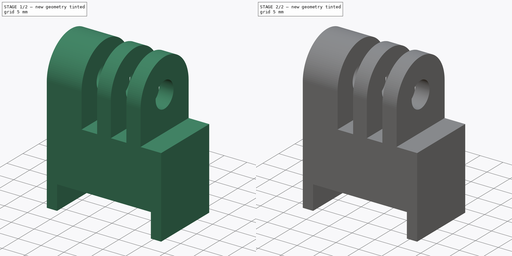
[diagram: build sequence overview — one tinted view per stage of 2, left to right]
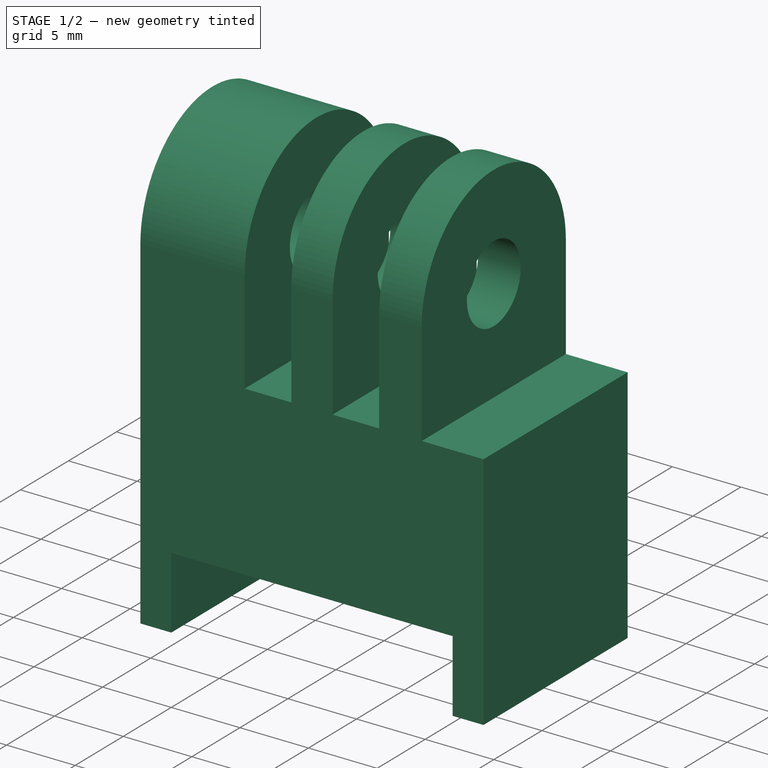
[diagram: stage 1 of 2 — iso view after this stage's code; geometry added in this stage tinted green]
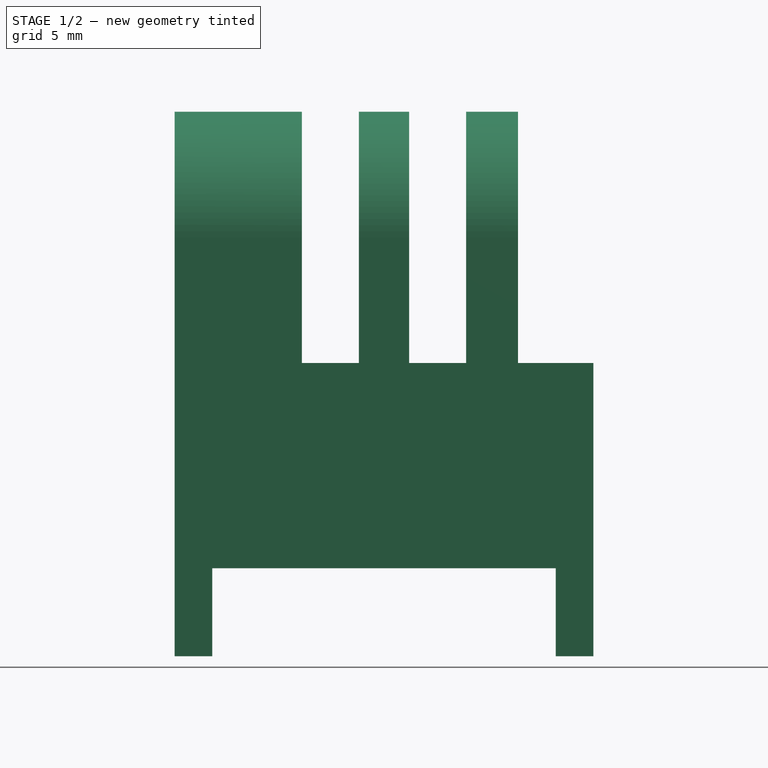
[diagram: stage 1 of 2 — front view after this stage's code; geometry added in this stage tinted green]
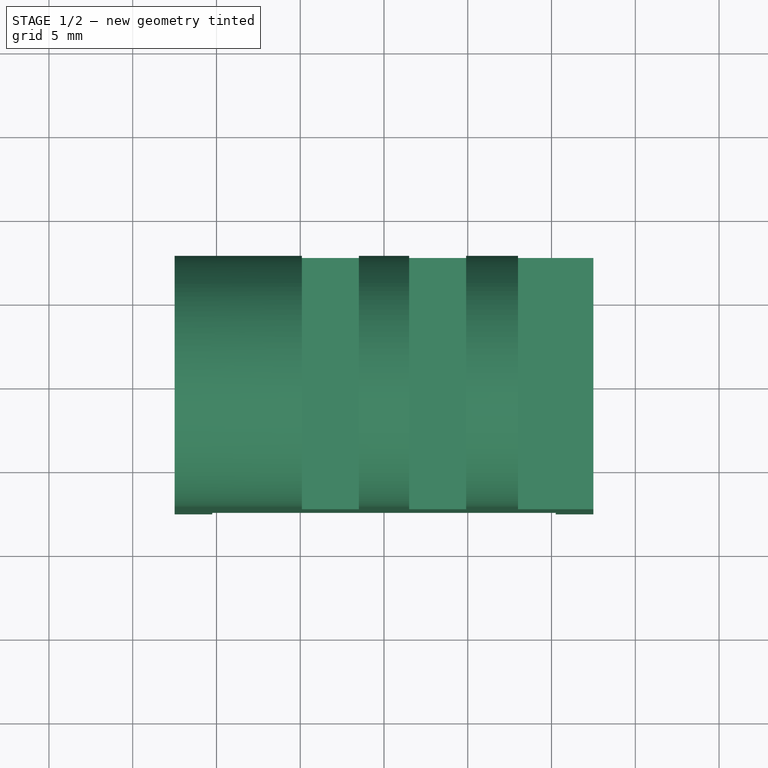
[diagram: stage 1 of 2 — top view after this stage's code; geometry added in this stage tinted green]
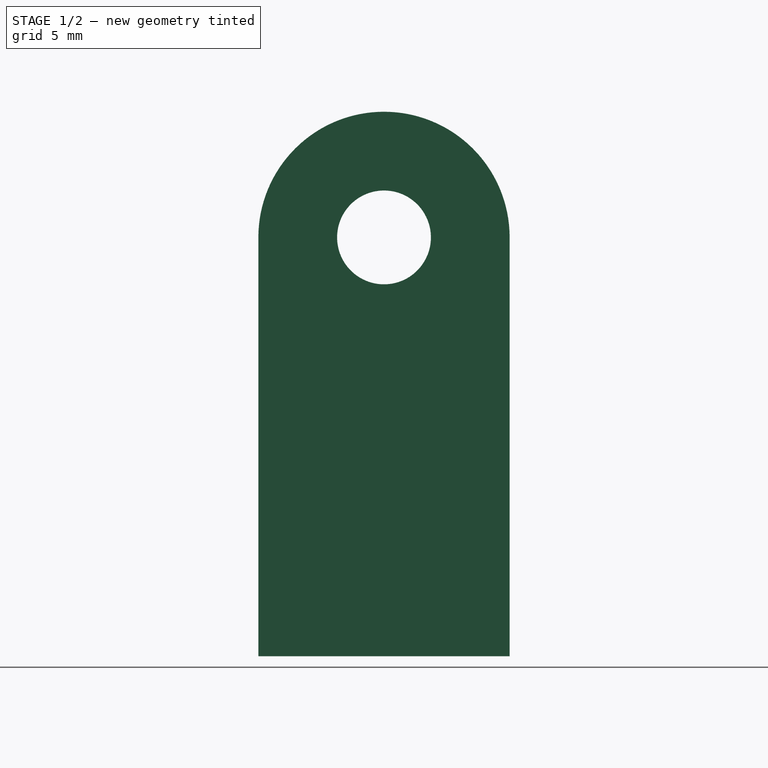
[diagram: stage 1 of 2 — right view after this stage's code; geometry added in this stage tinted green]
FCSTD DOCUMENT  (FreeCAD 0.21Rpre_29277.fc34 (Git))
Label: simple-gopro-mount
License: All rights reserved
LicenseURL: http://en.wikipedia.org/wiki/All_rights_reserved
objects: Sketcher::SketchObject×3, PartDesign::Pocket×2, PartDesign::Pad×1, PartDesign::Body×1
note: 10 computed .brp shape members not serialized (recipe doc carries the construction recipe); baked Part::Feature solids carry a one-line shape summary decoded from their .brp

FEATURE [Sketcher::SketchObject] Sketch009
  FullyConstrained = true
  MapMode = 5
  Placement = pos=(0,0,0) rot=(0.57735,0.57735,0.57735;2.0944rad)
  sketch-geometry (5):
    g0: LineSegment StartX=7.5 StartY=25 StartZ=0 EndX=7.5 EndY=0 EndZ=0
    g1: Circle CenterX=0 CenterY=25 CenterZ=0 NormalX=0 NormalY=0 NormalZ=1 AngleXU=0 Radius=2.8
    g2: ArcOfCircle CenterX=0 CenterY=25 CenterZ=0 NormalX=0 NormalY=0 NormalZ=1 AngleXU=0 Radius=7.5 StartAngle=0 EndAngle=3.14159
    g3: LineSegment StartX=-7.5 StartY=0 StartZ=0 EndX=-7.5 EndY=25 EndZ=0
    g4: LineSegment StartX=-7.5 StartY=0 StartZ=0 EndX=7.5 EndY=0 EndZ=0
  constraints (15):
    c: Radius(g1) = 2.8
    c: Coincident(g2,g1)
    c: DistanceY(g1) = 25
    c: Coincident(g0,g2)
    c: Coincident(g3,g2)
    c: DistanceX(g1) = 0
    c: DistanceY(g0) = 25
    c: DistanceY(g3) = 25
    c: DistanceX(g2) = -7.5
    c: Coincident(g4,g0)
    c: DistanceX(g4,g4) = 15
    c: DistanceX(g0) = 7.5
    c: DistanceY(g0) = 0
    c: Horizontal(g4)
    c: Coincident(g3,g4)
FEATURE [PartDesign::Pad] Pad  label="test"
  Direction = (1,0,0)
  Length = 25
  Length2 = 10
  Midplane = true
  Placement = pos=(0,0,0) rot=(0.57735,0.57735,0.57735;2.0944rad)
  Profile = -> Sketch009
  ReferenceAxis = -> Sketch009 [N_Axis]
  Type = 0
FEATURE [Sketcher::SketchObject] Sketch015
  FullyConstrained = true
  MapMode = 5
  Placement = pos=(0,0,0) rot=(1,0,0;1.5708rad)
  sketch-geometry (16):
    g0: LineSegment StartX=-10.25 StartY=5.25 StartZ=0 EndX=10.25 EndY=5.25 EndZ=0
    g1: LineSegment StartX=10.25 StartY=5.25 StartZ=0 EndX=10.25 EndY=-5.25 EndZ=0
    g2: LineSegment StartX=10.25 StartY=-5.25 StartZ=0 EndX=-10.25 EndY=-5.25 EndZ=0
    g3: LineSegment StartX=-10.25 StartY=-5.25 StartZ=0 EndX=-10.25 EndY=5.25 EndZ=0
    g4: LineSegment StartX=1.5 StartY=32.5 StartZ=0 EndX=4.9 EndY=32.5 EndZ=0
    g5: LineSegment StartX=4.9 StartY=32.5 StartZ=0 EndX=4.9 EndY=17.5 EndZ=0
    g6: LineSegment StartX=4.9 StartY=17.5 StartZ=0 EndX=1.5 EndY=17.5 EndZ=0
    g7: LineSegment StartX=1.5 StartY=17.5 StartZ=0 EndX=1.5 EndY=32.5 EndZ=0
    g8: LineSegment StartX=8 StartY=32.5 StartZ=0 EndX=23 EndY=32.5 EndZ=0
    g9: LineSegment StartX=23 StartY=32.5 StartZ=0 EndX=23 EndY=17.5 EndZ=0
    g10: LineSegment StartX=23 StartY=17.5 StartZ=0 EndX=8 EndY=17.5 EndZ=0
    g11: LineSegment StartX=8 StartY=17.5 StartZ=0 EndX=8 EndY=32.5 EndZ=0
    g12: LineSegment StartX=-1.5 StartY=32.5 StartZ=0 EndX=-4.9 EndY=32.5 EndZ=0
    g13: LineSegment StartX=-4.9 StartY=32.5 StartZ=0 EndX=-4.9 EndY=17.5 EndZ=0
    g14: LineSegment StartX=-4.9 StartY=17.5 StartZ=0 EndX=-1.5 EndY=17.5 EndZ=0
    g15: LineSegment StartX=-1.5 StartY=17.5 StartZ=0 EndX=-1.5 EndY=32.5 EndZ=0
  constraints (48):
    c: Coincident(g0,g1)
    c: Coincident(g1,g2)
    c: Coincident(g2,g3)
    c: Coincident(g3,g0)
    c: Horizontal(g0)
    c: Horizontal(g2)
    c: Vertical(g1)
    c: Vertical(g3)
    c: DistanceX(g0,g0) = 20.5
    c: DistanceY(g1,g1) = 10.5
    c: DistanceX(g0) = 10.25
    c: DistanceY(g0) = 5.25
    c: Coincident(g4,g5)
    c: Coincident(g5,g6)
    c: Coincident(g6,g7)
    c: Coincident(g7,g4)
    c: Horizontal(g4)
    c: Horizontal(g6)
    c: Vertical(g5)
    c: Vertical(g7)
    c: Coincident(g8,g9)
    c: Coincident(g9,g10)
    c: Coincident(g10,g11)
    c: Coincident(g11,g8)
    c: Horizontal(g8)
    c: Horizontal(g10)
    c: Vertical(g9)
    c: Vertical(g11)
    c: DistanceX(g4,g4) = 3.4
    c: DistanceX(g8,g8) = 15
    c: DistanceX(g4) = 1.5
    c: DistanceY(g4) = 32.5
    c: DistanceX(g8) = 8
    c: DistanceY(g8) = 32.5
    c: DistanceY(g9,g9) = 15
    c: DistanceY(g5,g5) = 15
    c: Coincident(g12,g13)
    c: Coincident(g13,g14)
    c: Coincident(g14,g15)
    c: Coincident(g15,g12)
    c: Horizontal(g12)
    c: Horizontal(g14)
    c: Vertical(g13)
    c: Vertical(g15)
    c: DistanceX(g12) = -1.5
    c: DistanceY(g12) = 32.5
    c: DistanceX(g14,g14) = 3.4
    c: DistanceY(g13,g13) = 15
FEATURE [PartDesign::Pocket] Pocket  label="kivagasok"
  BaseFeature = -> Pad
  Direction = (0,1,-2e-16)
  Length = 30
  Length2 = 5
  Midplane = true
  Placement = pos=(0,0,0) rot=(0.57735,0.57735,0.57735;2.0944rad)
  Profile = -> Sketch015
  ReferenceAxis = -> Sketch015 [N_Axis]
  Type = 0
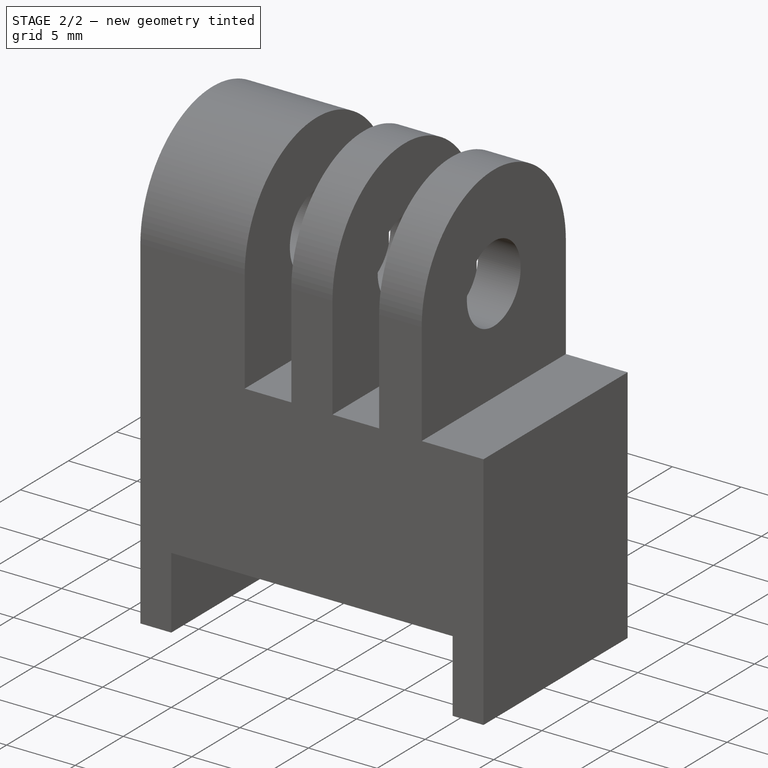
[diagram: stage 2 of 2 — iso view after this stage's code; geometry added in this stage tinted green]
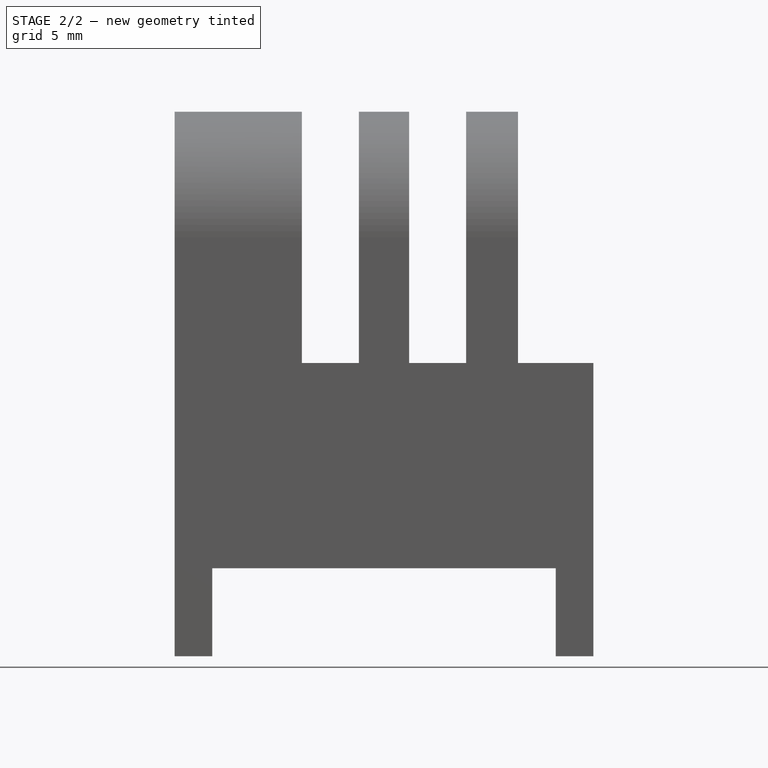
[diagram: stage 2 of 2 — front view after this stage's code; geometry added in this stage tinted green]
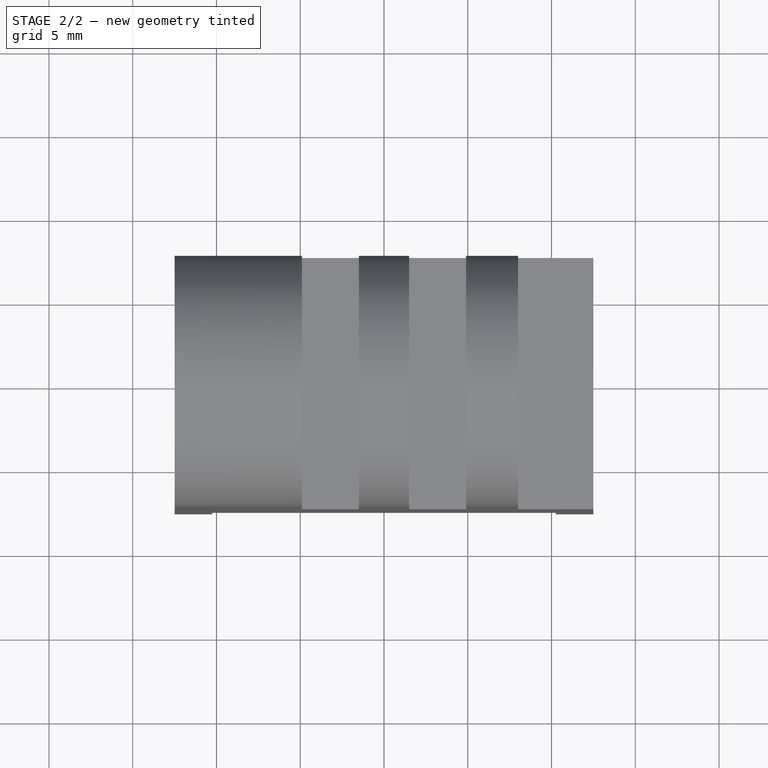
[diagram: stage 2 of 2 — top view after this stage's code; geometry added in this stage tinted green]
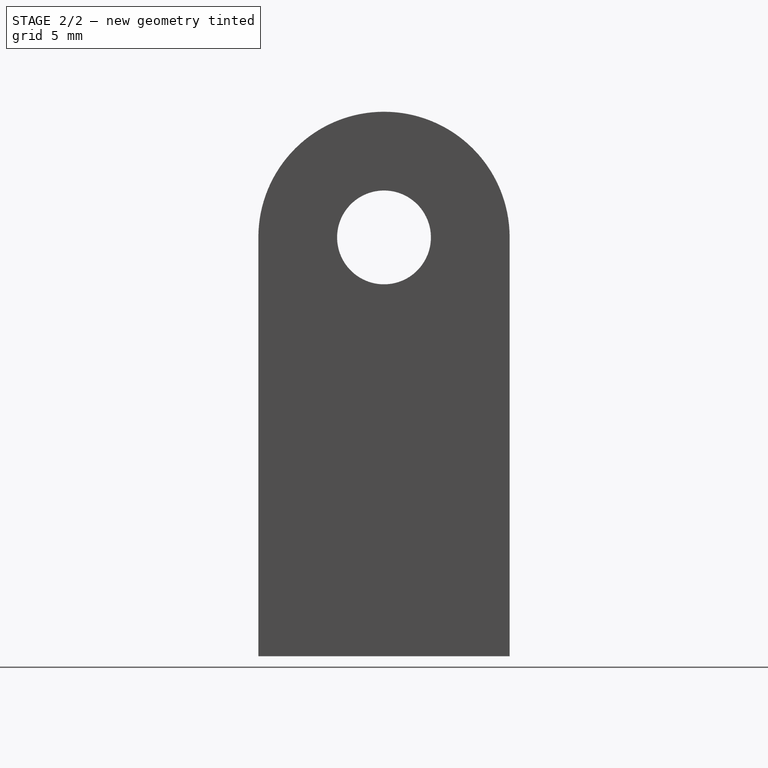
[diagram: stage 2 of 2 — right view after this stage's code; geometry added in this stage tinted green]
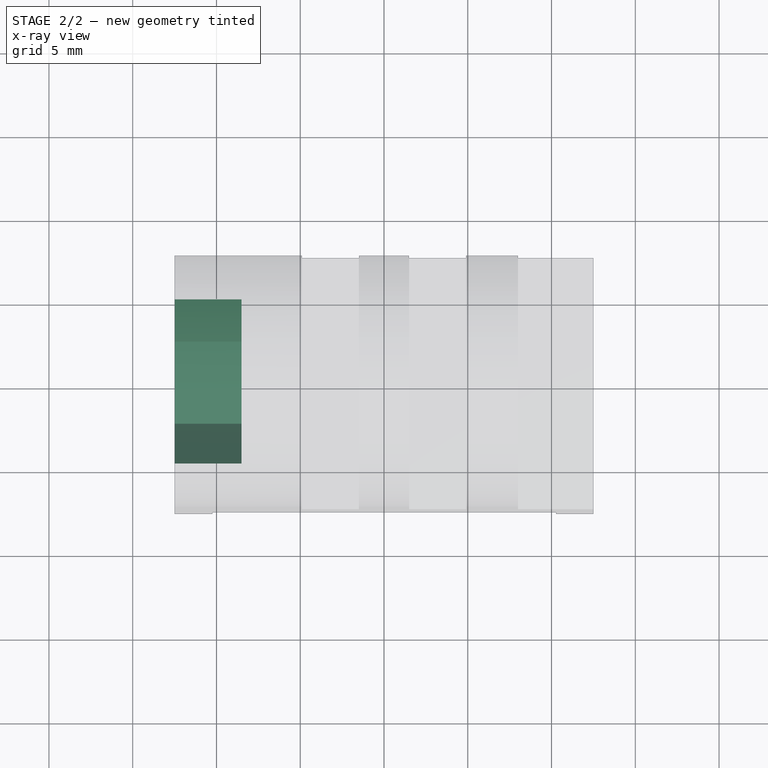
[diagram: stage 2 of 2 — x-ray composite at the top view; earlier geometry ghosted, this stage's added geometry solid]
FEATURE [Sketcher::SketchObject] Sketch016
  AttachmentOffset = pos=(0,0,-12.5) rot=(0,0,1;0rad)
  FullyConstrained = true
  MapMode = 5
  Placement = pos=(-12.5,3e-15,-3e-15) rot=(0.57735,0.57735,0.57735;2.0944rad)
  sketch-geometry (7):
    g0: LineSegment StartX=-2.45 StartY=20.7565 StartZ=0 EndX=2.45 EndY=20.7565 EndZ=0
    g1: LineSegment StartX=2.45 StartY=20.7565 StartZ=0 EndX=4.9 EndY=25 EndZ=0
    g2: LineSegment StartX=4.9 StartY=25 StartZ=0 EndX=2.45 EndY=29.2435 EndZ=0
    g3: LineSegment StartX=2.45 StartY=29.2435 StartZ=0 EndX=-2.45 EndY=29.2435 EndZ=0
    g4: LineSegment StartX=-2.45 StartY=29.2435 StartZ=0 EndX=-4.9 EndY=25 EndZ=0
    g5: LineSegment StartX=-4.9 StartY=25 StartZ=0 EndX=-2.45 EndY=20.7565 EndZ=0
    g6: Circle CenterX=0 CenterY=25 CenterZ=0 NormalX=0 NormalY=0 NormalZ=1 AngleXU=0 Radius=4.9
  constraints (17):
    c: Coincident(g0,g1)
    c: Coincident(g1,g2)
    c: Coincident(g2,g3)
    c: Coincident(g3,g4)
    c: Coincident(g4,g5)
    c: Coincident(g5,g0)
    c: Equal(g0, g1-g5) x5
    c: PointOnObject(g0,g6)
    c: PointOnObject(g1,g6)
    c: PointOnObject(g2,g6)
    c: PointOnObject(g3,g6)
    c: PointOnObject(g4,g6)
    c: PointOnObject(g5,g6)
    c: PointOnObject(g6,g-2)
    c: Horizontal(g3)
    c: DistanceY(g6) = 25
    c: Radius(g6) = 4.9
FEATURE [PartDesign::Pocket] Pocket001  label="anya"
  BaseFeature = -> Pocket
  Direction = (-1,0,0)
  Length = 4
  Length2 = 5
  Placement = pos=(0,0,0) rot=(0.57735,0.57735,0.57735;2.0944rad)
  Profile = -> Sketch016
  ReferenceAxis = -> Sketch016 [N_Axis]
  Reversed = true
  Type = 0
FEATURE [PartDesign::Body] Body
  Group = -> [Sketch009,Pad,Sketch015,Pocket,Sketch016,Pocket001]
  Origin = -> Origin
  Tip = -> Pocket001
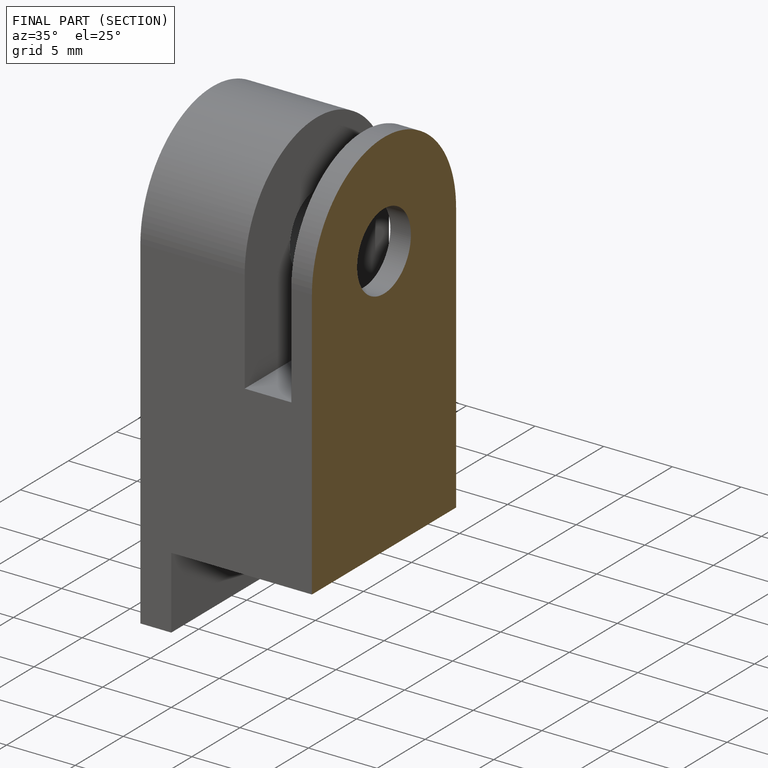
[diagram: finished part — half-section view (interior)]
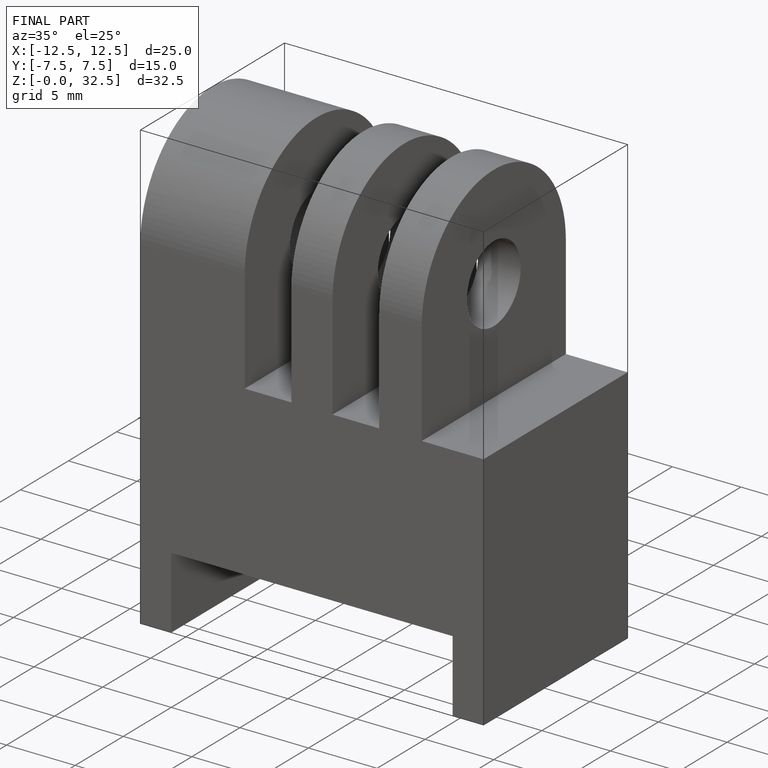
[diagram: finished part — iso view with bounding-box wireframe]
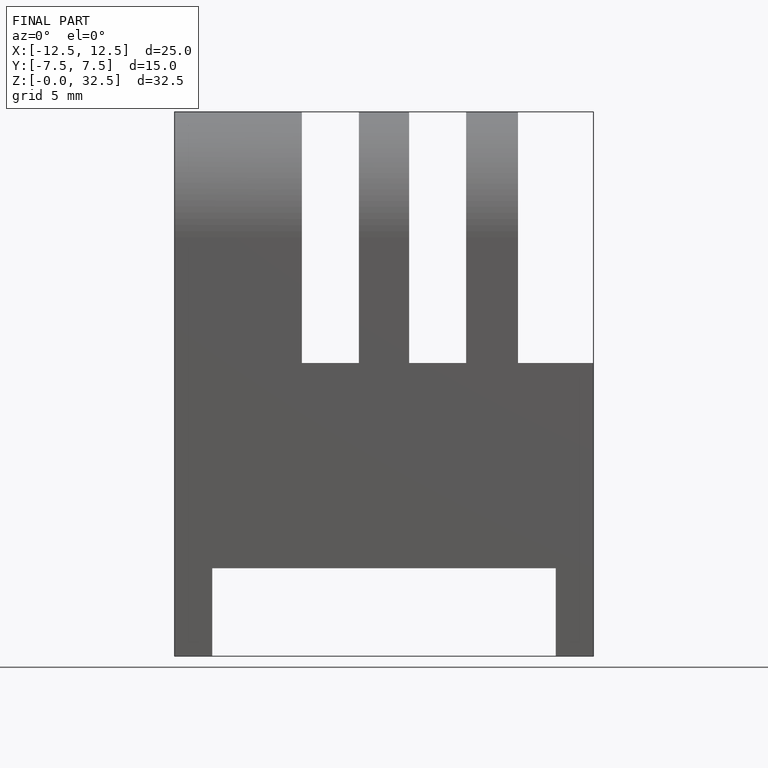
[diagram: finished part — front view with bounding-box wireframe]
